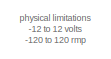
[diagram: root canvas - part 1/4, top left region]
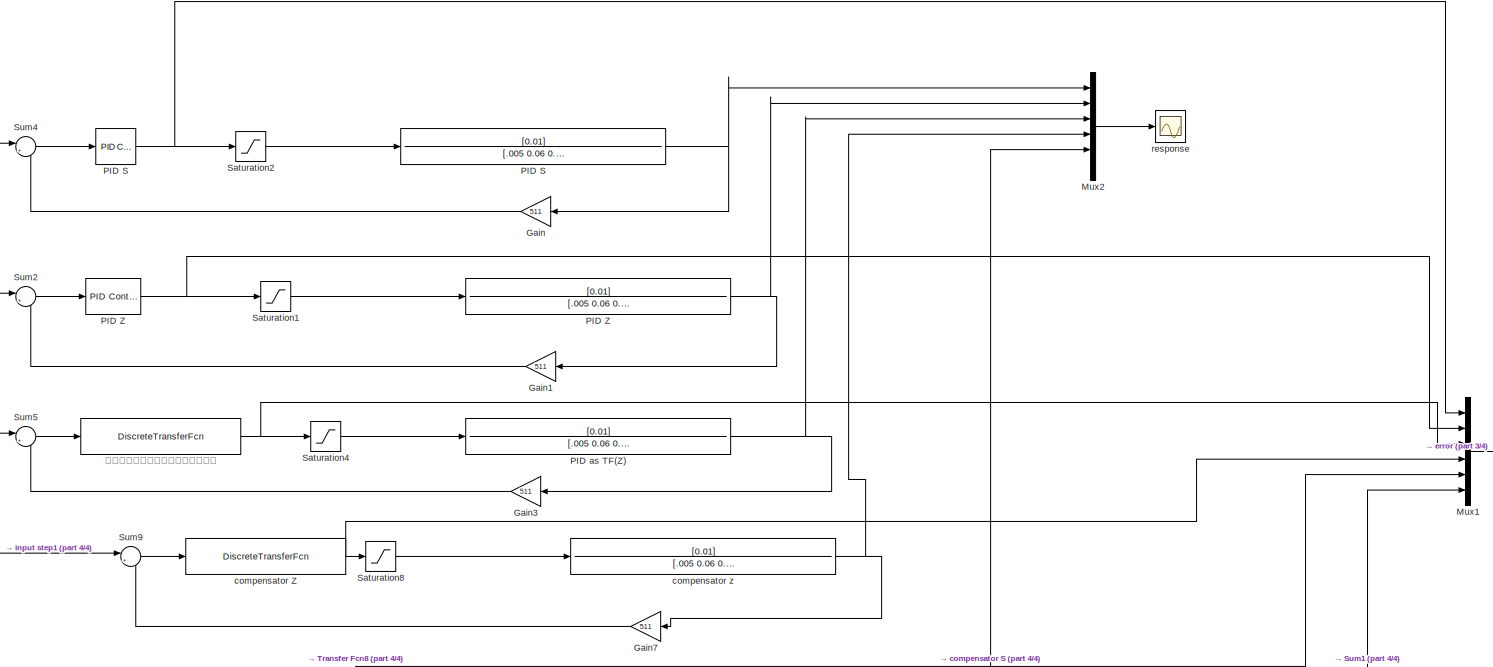
[diagram: root canvas - part 2/4, full width, middle band]
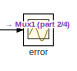
[diagram: root canvas - part 3/4, middle right region]
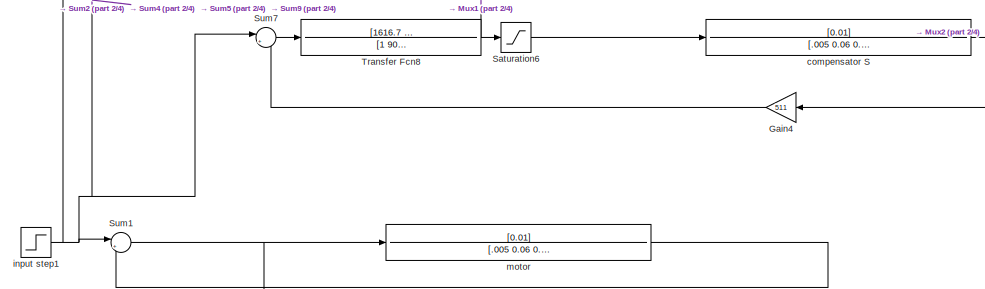
[diagram: root canvas - part 4/4, bottom center region]
MODEL slx_fe646598e3aa
KIND model
CONFIG AbsTol = auto
CONFIG FixedStep = auto
CONFIG MaxStep = auto
CONFIG MinStep = auto
CONFIG RelTol = 1e-3
CONFIG SampleTimeConstraint = Unconstrained
CONFIG Solver = VariableStepAuto
CONFIG SolverMode = Auto
CONFIG SolverName = VariableStepAuto
CONFIG StartTime = 0.0
CONFIG StopTime = 10.0
BLOCK [Gain] Gain
  Gain = 511
  OutDataTypeStr = Inherit: Inherit via internal rule
  ParamDataTypeStr = Inherit: Inherit via internal rule
  SaturateOnIntegerOverflow = off
BLOCK [Gain] Gain1
  Gain = 511
  OutDataTypeStr = Inherit: Inherit via internal rule
  ParamDataTypeStr = Inherit: Inherit via internal rule
  SaturateOnIntegerOverflow = off
BLOCK [Gain] Gain3
  Gain = 511
  OutDataTypeStr = Inherit: Inherit via internal rule
  ParamDataTypeStr = Inherit: Inherit via internal rule
  SaturateOnIntegerOverflow = off
BLOCK [Gain] Gain4
  Gain = 511
  OutDataTypeStr = Inherit: Inherit via internal rule
  ParamDataTypeStr = Inherit: Inherit via internal rule
  SaturateOnIntegerOverflow = off
BLOCK [Gain] Gain7
  Gain = 511
  OutDataTypeStr = Inherit: Inherit via internal rule
  ParamDataTypeStr = Inherit: Inherit via internal rule
  SaturateOnIntegerOverflow = off
BLOCK [Mux] Mux1
  DisplayOption = bar
  Inputs = 6
  Ports = [6, 1]
BLOCK [Mux] Mux2
  DisplayOption = bar
  Inputs = 6
  Ports = [6, 1]
BLOCK [Reference] PID S  REF=simulink/Continuous/PID Controller
  Ports = [1, 1]
  SourceBlock = simulink/Continuous/PID Controller
  SourceType = PID 1dof
BLOCK [TransferFcn] PID S 
  Denominator = [.005 0.06 0.1001]
  Numerator = [0.01]
BLOCK [Reference] PID Z  REF=simulink/Continuous/PID Controller
  Ports = [1, 1]
  SourceBlock = simulink/Continuous/PID Controller
  SourceType = PID 1dof
BLOCK [TransferFcn] PID Z 
  Denominator = [.005 0.06 0.1001]
  Numerator = [0.01]
BLOCK [TransferFcn] PID as TF(Z)
  Denominator = [.005 0.06 0.1001]
  Numerator = [0.01]
BLOCK [Saturate] Saturation1
  InputPortMap = u0
  LowerLimit = 0
  Ports = [1, 1]
  UpperLimit = 255
BLOCK [Saturate] Saturation2
  InputPortMap = u0
  LowerLimit = 0
  Ports = [1, 1]
  UpperLimit = 255
BLOCK [Saturate] Saturation4
  InputPortMap = u0
  LowerLimit = 0
  Ports = [1, 1]
  UpperLimit = 255
BLOCK [Saturate] Saturation6
  InputPortMap = u0
  LowerLimit = 0
  Ports = [1, 1]
  UpperLimit = 255
BLOCK [Saturate] Saturation8
  InputPortMap = u0
  LowerLimit = 0
  Ports = [1, 1]
  UpperLimit = 255
BLOCK [Sum] Sum1
  IconShape = round
  InputSameDT = off
  Inputs = |+-
  OutDataTypeStr = Inherit: Inherit via internal rule
  Ports = [2, 1]
  SaturateOnIntegerOverflow = off
BLOCK [Sum] Sum2
  IconShape = round
  InputSameDT = off
  Inputs = |+-
  OutDataTypeStr = Inherit: Inherit via internal rule
  Ports = [2, 1]
  SaturateOnIntegerOverflow = off
BLOCK [Sum] Sum4
  IconShape = round
  InputSameDT = off
  Inputs = |+-
  OutDataTypeStr = Inherit: Inherit via internal rule
  Ports = [2, 1]
  SaturateOnIntegerOverflow = off
BLOCK [Sum] Sum5
  IconShape = round
  InputSameDT = off
  Inputs = |+-
  OutDataTypeStr = Inherit: Inherit via internal rule
  Ports = [2, 1]
  SaturateOnIntegerOverflow = off
BLOCK [Sum] Sum7
  IconShape = round
  InputSameDT = off
  Inputs = |+-
  OutDataTypeStr = Inherit: Inherit via internal rule
  Ports = [2, 1]
  SaturateOnIntegerOverflow = off
BLOCK [Sum] Sum9
  IconShape = round
  InputSameDT = off
  Inputs = |+-
  OutDataTypeStr = Inherit: Inherit via internal rule
  Ports = [2, 1]
  SaturateOnIntegerOverflow = off
BLOCK [TransferFcn] Transfer Fcn8
  Denominator = [1         90.5           45]
  Numerator = [1616.7        19400        43650\n]
BLOCK [TransferFcn] compensator S
  Denominator = [.005 0.06 0.1001]
  Numerator = [0.01]
BLOCK [DiscreteTransferFcn] compensator Z 
  Denominator = [1       -1.991      0.99099]
  InputPortMap = u0
  Numerator = [1610.3      -3218.8       1608.4]
  Ports = [1, 1]
  SampleTime = .0001
BLOCK [TransferFcn] compensator z 
  Denominator = [.005 0.06 0.1001]
  Numerator = [0.01]
BLOCK [Scope] error
  Ports = [1]
  ScopeSpecificationString = Simulink.scopes.TimeScopeBlockCfg('CurrentConfiguration', extmgr.ConfigurationSet(extmgr.Configuration('Core','General UI',true),extmgr.Configuration('Core','Source UI',true),extmgr.Configuration('Sources','WiredSimulink',true,'DataLoggingVariableName','ScopeData1'),extmgr.Configuration('Visuals','Time Domain',true,'SerializedDisplays',{struct('MinYLimReal','-94214852583939092000000000000000000000...<+2174ch>
BLOCK [Step] input step1
  After = 511
  SampleTime = 0
  Time = 0
BLOCK [TransferFcn] motor
  Denominator = [.005 0.06 0.1001]
  Numerator = [0.01]
BLOCK [Scope] response
  Ports = [1]
  ScopeSpecificationString = Simulink.scopes.TimeScopeBlockCfg('CurrentConfiguration', extmgr.ConfigurationSet(extmgr.Configuration('Core','General UI',true),extmgr.Configuration('Core','Source UI',true),extmgr.Configuration('Sources','WiredSimulink',true,'DataLoggingVariableName','ScopeData1'),extmgr.Configuration('Visuals','Time Domain',true,'SerializedDisplays',{struct('MinYLimReal','-0.16686','MaxYLimReal','1.50178','YLab...<+1812ch>
BLOCK [DiscreteTransferFcn] لماذاااااااااااع 
  Denominator = [ 1 -1.996  +0.9962]
  InputPortMap = u0
  Numerator = [0.1559  -0.3116  +0.1557]
  Ports = [1, 1]
  SampleTime = .0001
ANNOTATION (root): physical limitations -12 to 12 volts -120 to 120 rmp
LINE Gain1:1 -> Sum2:2
LINE Gain3:1 -> Sum5:2
LINE Gain4:1 -> Sum7:2
LINE Gain7:1 -> Sum9:2
LINE Gain:1 -> Sum4:2
LINE Mux1:1 -> error:1
LINE Mux2:1 -> response:1
NET PID S :1 -> Gain:1, Mux2:1
NET PID S:1 -> Mux1:1, Saturation2:1
NET PID Z :1 -> Gain1:1, Mux2:2
NET PID Z:1 -> Mux1:2, Saturation1:1
NET PID as TF(Z):1 -> Gain3:1, Mux2:3
LINE Saturation1:1 -> PID Z :1
LINE Saturation2:1 -> PID S :1
LINE Saturation4:1 -> PID as TF(Z):1
LINE Saturation6:1 -> compensator S:1
LINE Saturation8:1 -> compensator z :1
NET Sum1:1 -> Mux1:6, motor:1
LINE Sum2:1 -> PID Z:1
LINE Sum4:1 -> PID S:1
LINE Sum5:1 -> لماذاااااااااااع :1
LINE Sum7:1 -> Transfer Fcn8:1
LINE Sum9:1 -> compensator Z :1
NET Transfer Fcn8:1 -> Mux1:5, Saturation6:1
NET compensator S:1 -> Gain4:1, Mux2:5
NET compensator Z :1 -> Mux1:4, Saturation8:1
NET compensator z :1 -> Gain7:1, Mux2:4
NET input step1:1 -> Sum1:1, Sum2:1, Sum4:1, Sum5:1, Sum7:1, Sum9:1
LINE motor:1 -> Sum1:2
NET لماذاااااااااااع :1 -> Mux1:3, Saturation4:1
note: NET lines group one-source signal fan-out (src -> all destinations, sorted); 1:1 wires keep LINE
